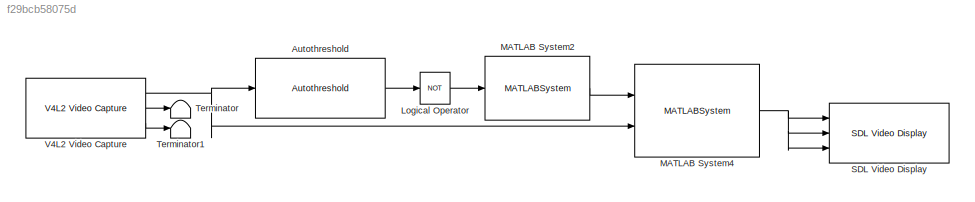
MODEL slx_f29bcb58075d
KIND model
CONFIG AbsTol = auto
CONFIG EnableMultiTasking = on
CONFIG FixedStep = auto
CONFIG MaxStep = auto
CONFIG MinStep = auto
CONFIG RelTol = 1e-3
CONFIG SampleTimeConstraint = Unconstrained
CONFIG SolverName = FixedStepAuto
CONFIG StartTime = 0.0
CONFIG StopTime = 10.0
BLOCK [Reference] Autothreshold  REF=visionconversions/Autothreshold
  Ports = [1, 1]
  SourceBlock = visionconversions/Autothreshold
  SourceProductBaseCode = VP
  SourceType = Autothreshold
BLOCK [Logic] Logical Operator
  AllPortsSameDT = off
  Operator = NOT
  OutDataTypeStr = boolean
  Ports = [1, 1]
BLOCK [MATLABSystem] MATLAB System2
  Deg = 4
  MaskDisplay = disp('BW to P');\nport_label('input',1,'BW');\nport_label('output',1,'P');
  MaskType = PolyfitSystem
  Ports = [1, 1]
  SimulateUsing = Code generation
  System = PolyfitSystem
BLOCK [MATLABSystem] MATLAB System4
  MaskDisplay = disp('P to y');\nport_label('input',1,'P');\nport_label('input',2,'Gray');\nport_label('output',1,'output');
  MaskType = PolyvalSystem
  Ports = [2, 1]
  SimulateUsing = Code generation
  System = PolyvalSystem
BLOCK [Reference] SDL Video Display  REF=raspberrypiAVlib/SDL Video Display
  Ports = [3]
  SourceBlock = raspberrypiAVlib/SDL Video Display
  SourceProductBaseCode = SC_BEAGLEBONE_BLUE,EMBEDDEDLINUX,NVIDIA,RASPPIIO
  SourceType = SDL Video Display
BLOCK [Terminator] Terminator
BLOCK [Terminator] Terminator1
BLOCK [Reference] V4L2 Video Capture  REF=raspberrypiAVlib/V4L2 Video Capture
  Ports = [0, 3]
  SourceBlock = raspberrypiAVlib/V4L2 Video Capture
  SourceProductBaseCode = RASPPI
  SourceType = codertarget.raspi.internal.Raspiv4l2Capture
LINE Autothreshold:1 -> Logical Operator:1
LINE Logical Operator:1 -> MATLAB System2:1
LINE MATLAB System2:1 -> MATLAB System4:1
NET MATLAB System4:1 -> SDL Video Display:1, SDL Video Display:2, SDL Video Display:3
NET V4L2 Video Capture:1 -> Autothreshold:1, MATLAB System4:2
LINE V4L2 Video Capture:2 -> Terminator:1
LINE V4L2 Video Capture:3 -> Terminator1:1
note: NET lines group one-source signal fan-out (src -> all destinations, sorted); 1:1 wires keep LINE
